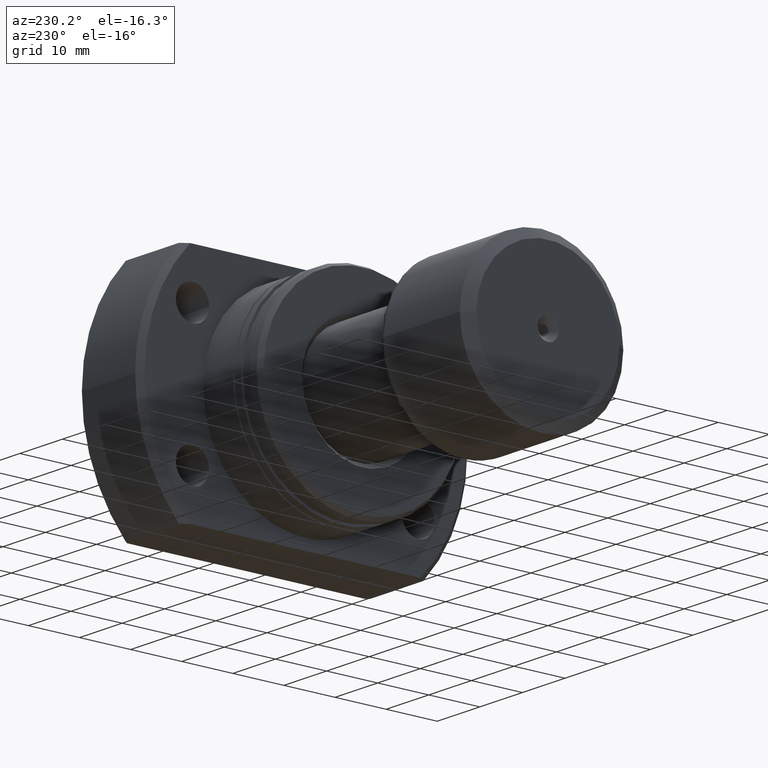
[diagram: clean part render]
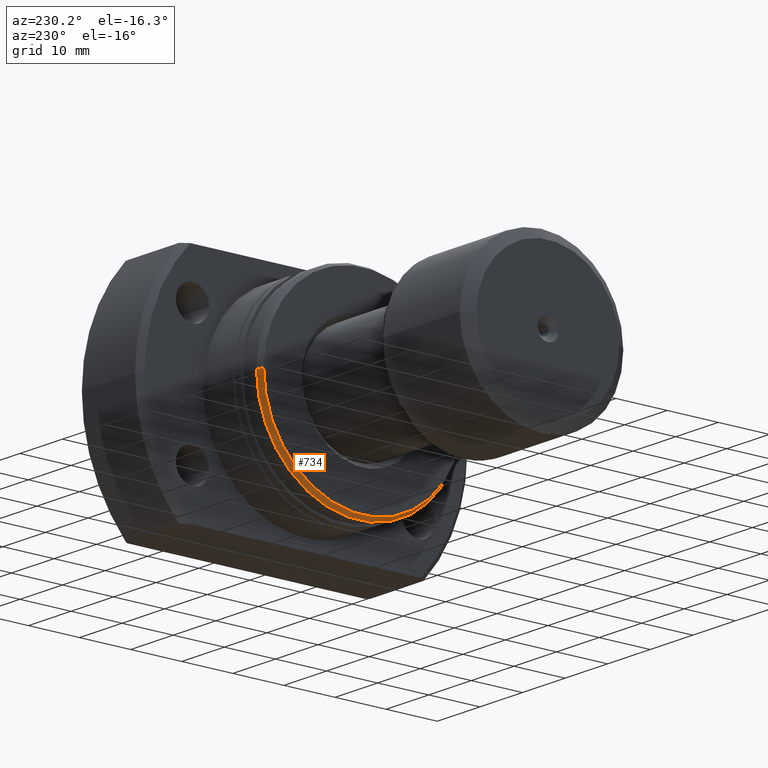
[diagram: same view with one face highlighted and labeled with its STEP entity id]
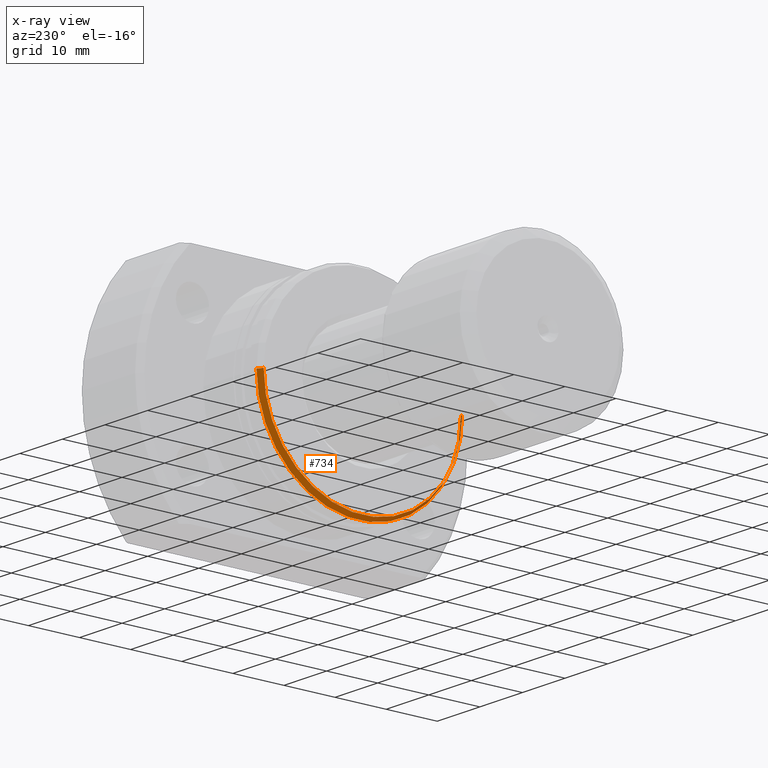
[diagram: x-ray of the same camera — body ghosted, the highlighted face saturated]
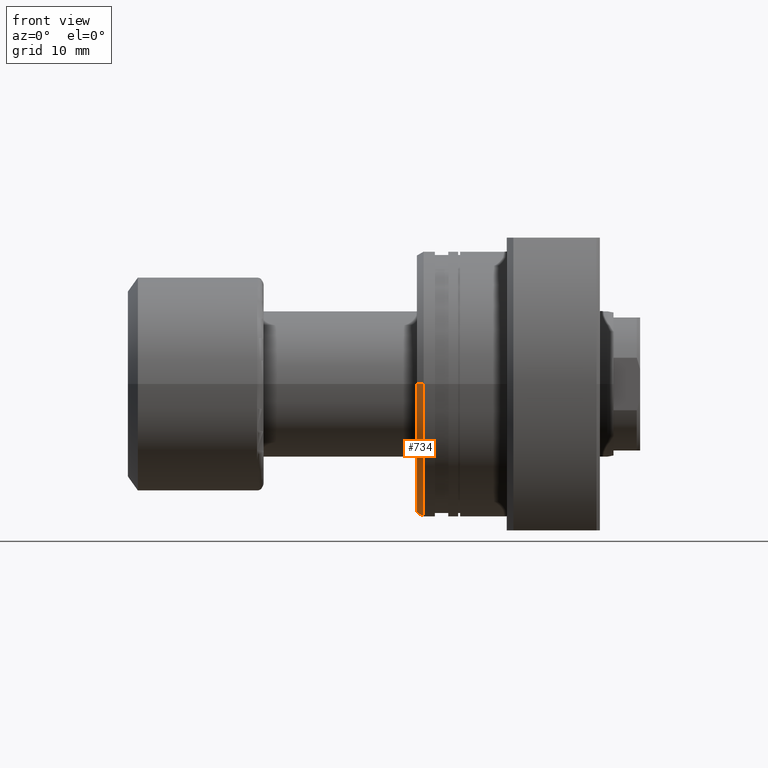
[diagram: same view with one face highlighted and labeled with its STEP entity id]
A machine part, auxiliary view. The second image highlights one B-rep face of the part: STEP entity #734.
The next image is the same camera in x-ray: the body ghosted, the highlighted face saturated — about 2% of this face is hidden behind the body in this view.
A second angle (front view) of the same face is appended — the face is thin or edge-on in the first view.
In plain terms, the highlighted conical surface has half-angle 30 deg.
Its self-contained STEP definition (entity closure, byte-faithful):
#14 = DIRECTION ( 'NONE',  ( -1.335978326342566194E-17, 1.000000000000000000, 0.000000000000000000 ) ) ;
#101 = VERTEX_POINT ( 'NONE', #423 ) ;
#108 = EDGE_CURVE ( 'NONE', #101, #458, #1895, .T. ) ;
#163 = VECTOR ( 'NONE', #2888, 1000.000000000000227 ) ;
#173 = EDGE_CURVE ( 'NONE', #512, #458, #786, .T. ) ;
#200 = AXIS2_PLACEMENT_3D ( 'NONE', #2247, #1030, #14 ) ;
#223 = DIRECTION ( 'NONE',  ( 1.000000000000000000, 1.335978326342566810E-17, -0.000000000000000000 ) ) ;
#330 = CARTESIAN_POINT ( 'NONE',  ( 3.469446951953614189E-15, 4.814824860968089633E-32, 0.000000000000000000 ) ) ;
#336 = ORIENTED_EDGE ( 'NONE', *, *, #1611, .T. ) ;
#423 = CARTESIAN_POINT ( 'NONE',  ( 3.209964561148554822E-15, 19.42264973081037027, 0.000000000000000000 ) ) ;
#458 = VERTEX_POINT ( 'NONE', #2375 ) ;
#473 = AXIS2_PLACEMENT_3D ( 'NONE', #330, #2099, #3052 ) ;
#512 = VERTEX_POINT ( 'NONE', #3111 ) ;
#639 = EDGE_LOOP ( 'NONE', ( #1643, #336, #1976, #2640 ) ) ;
#674 = DIRECTION ( 'NONE',  ( 0.8660254037843913011, -0.5000000000000819345, 6.123233995737769368E-17 ) ) ;
#734 = ADVANCED_FACE ( 'NONE', ( #1090 ), #836, .T. ) ;
#786 = CIRCLE ( 'NONE', #2766, 19.99999999999999645 ) ;
#836 = CONICAL_SURFACE ( 'NONE', #473, 19.42264973081037027, 0.5235987755983935177 ) ;
#909 = CARTESIAN_POINT ( 'NONE',  ( 3.209964561148554822E-15, 19.42264973081037027, 0.000000000000000000 ) ) ;
#1030 = DIRECTION ( 'NONE',  ( 1.000000000000000000, 1.335978326342566810E-17, -0.000000000000000000 ) ) ;
#1090 = FACE_OUTER_BOUND ( 'NONE', #639, .T. ) ;
#1195 = CIRCLE ( 'NONE', #200, 19.42264973081037027 ) ;
#1413 = EDGE_CURVE ( 'NONE', #3044, #512, #1896, .T. ) ;
#1511 = CARTESIAN_POINT ( 'NONE',  ( 0.9999999999997857270, 1.335978326342282389E-17, 0.000000000000000000 ) ) ;
#1568 = CARTESIAN_POINT ( 'NONE',  ( 3.728929342758673161E-15, -19.42264973081037027, 2.413941090337209377E-15 ) ) ;
#1611 = EDGE_CURVE ( 'NONE', #3044, #101, #1195, .T. ) ;
#1643 = ORIENTED_EDGE ( 'NONE', *, *, #1413, .F. ) ;
#1895 = LINE ( 'NONE', #909, #163 ) ;
#1896 = LINE ( 'NONE', #1925, #1965 ) ;
#1925 = CARTESIAN_POINT ( 'NONE',  ( 3.728929342758673161E-15, -19.42264973081037027, 2.378588582379712242E-15 ) ) ;
#1965 = VECTOR ( 'NONE', #674, 1000.000000000000227 ) ;
#1976 = ORIENTED_EDGE ( 'NONE', *, *, #108, .T. ) ;
#2099 = DIRECTION ( 'NONE',  ( 1.000000000000000000, 1.335978326342566810E-17, -0.000000000000000000 ) ) ;
#2247 = CARTESIAN_POINT ( 'NONE',  ( 3.469446951953614189E-15, 4.814824860968089633E-32, 0.000000000000000000 ) ) ;
#2375 = CARTESIAN_POINT ( 'NONE',  ( 0.9999999999997856159, 19.99999999999999645, 0.000000000000000000 ) ) ;
#2640 = ORIENTED_EDGE ( 'NONE', *, *, #173, .F. ) ;
#2755 = DIRECTION ( 'NONE',  ( -1.084202172485504588E-17, 1.000000000000000000, 0.000000000000000000 ) ) ;
#2766 = AXIS2_PLACEMENT_3D ( 'NONE', #1511, #223, #2755 ) ;
#2888 = DIRECTION ( 'NONE',  ( 0.8660254037843913011, 0.5000000000000819345, 0.000000000000000000 ) ) ;
#3044 = VERTEX_POINT ( 'NONE', #1568 ) ;
#3052 = DIRECTION ( 'NONE',  ( -1.335978326342566194E-17, 1.000000000000000000, 0.000000000000000000 ) ) ;
#3111 = CARTESIAN_POINT ( 'NONE',  ( 0.9999999999997859490, -19.99999999999999645, 2.449293598294706119E-15 ) ) ;